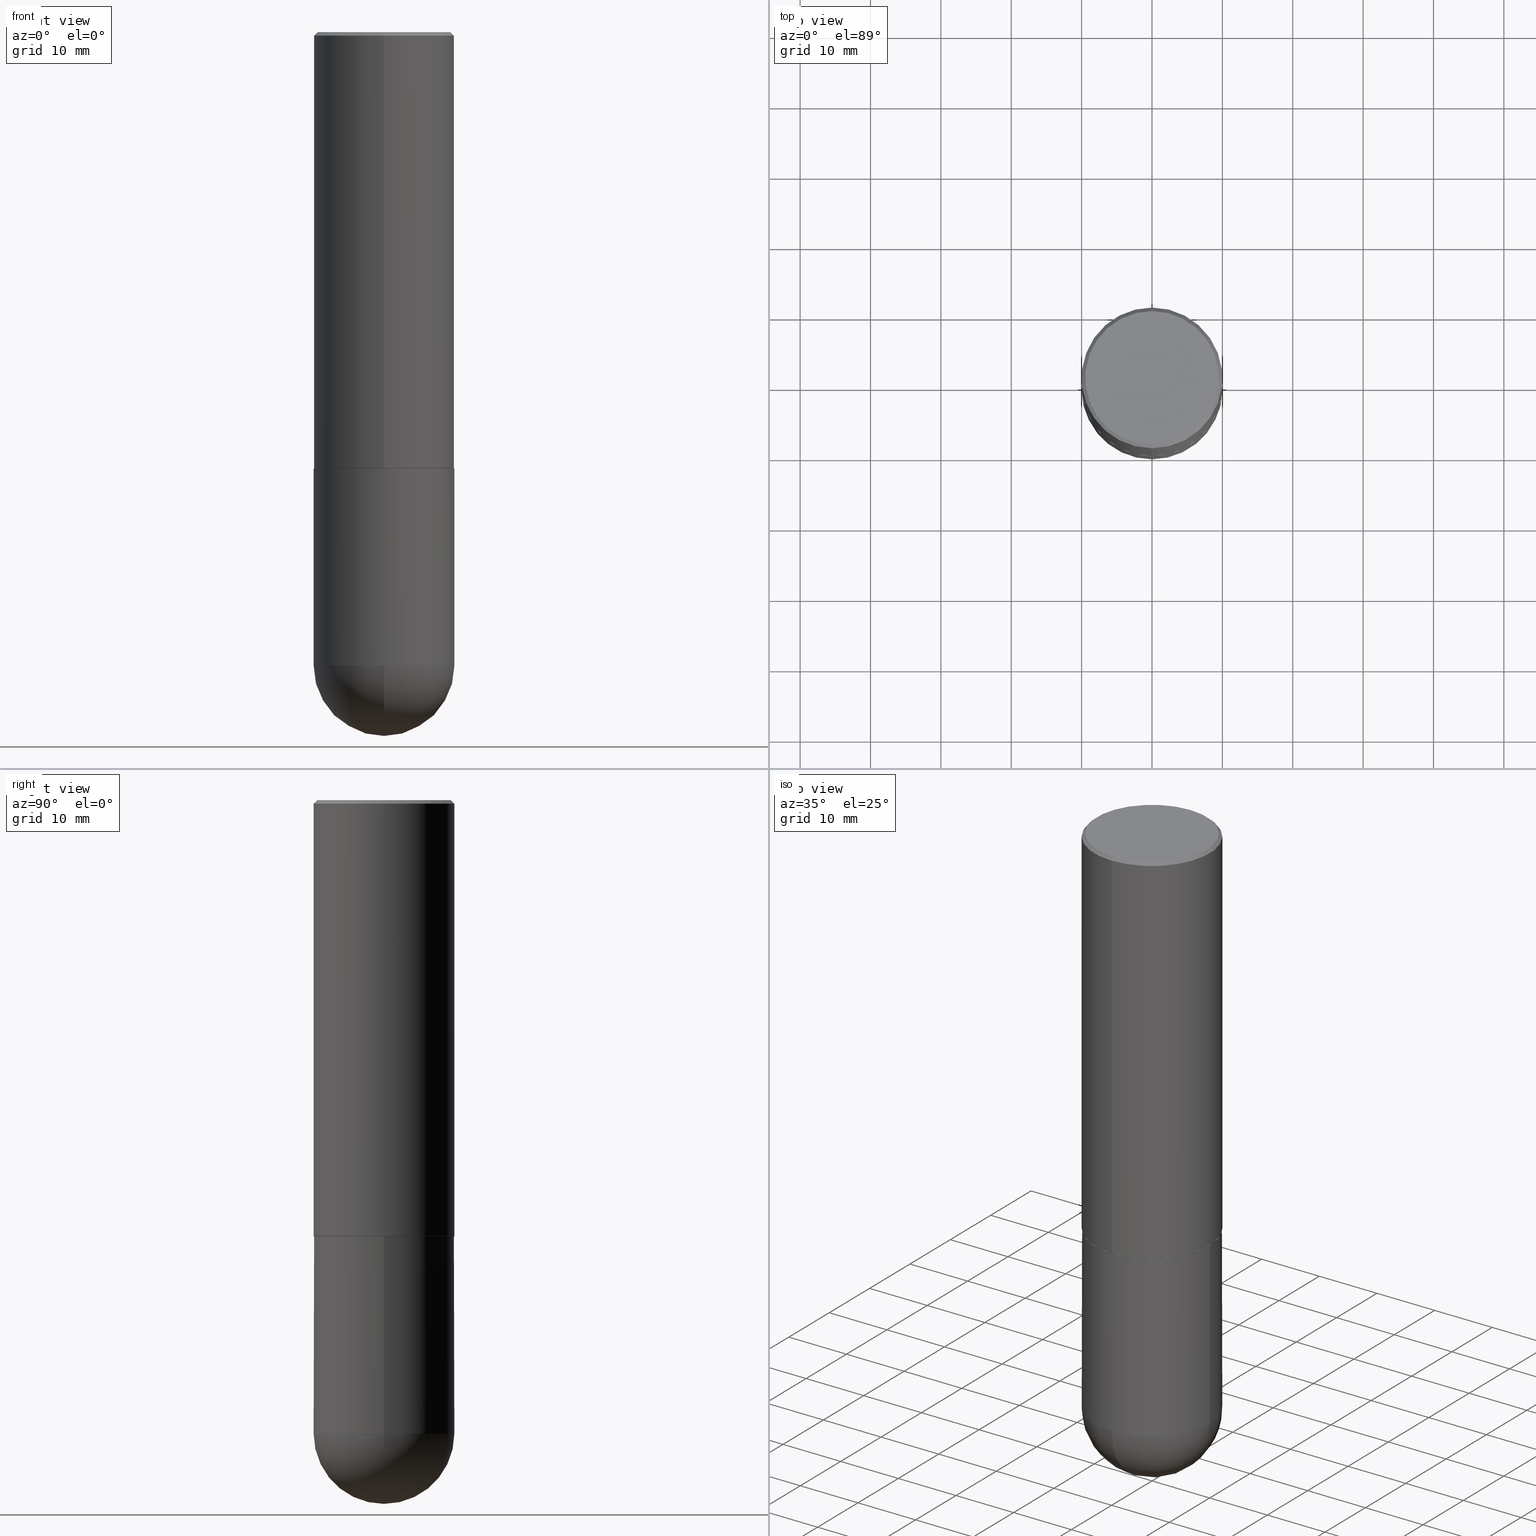
[diagram: canonical four-view strip — front | top / right | iso, engineering-drawing reading convention]
A machine part, canonical four-view strip (front | top / right | iso — engineering-drawing reading convention). The complete STEP part file that produces these views, byte-faithful:
ISO-10303-21;
HEADER;
FILE_DESCRIPTION (( 'STEP AP203' ),
    '1' );
FILE_NAME ('40582.STEP',
    '2024-04-10T11:41:38',
    ( '' ),
    ( '' ),
    'SwSTEP 2.0',
    'SolidWorks 2023',
    '' );
FILE_SCHEMA (( 'CONFIG_CONTROL_DESIGN' ));
ENDSEC;

DATA;
#1 = DATE_AND_TIME ( #381, #374 ) ;
#2 = ORIENTED_EDGE ( 'NONE', *, *, #59, .F. ) ;
#3 = FACE_OUTER_BOUND ( 'NONE', #342, .T. ) ;
#4 = CYLINDRICAL_SURFACE ( 'NONE', #353, 0.3937000000000001609 ) ;
#5 = DIRECTION ( 'NONE',  ( -6.982962677686265133E-15, -1.000000000000000000, 3.491137977679279424E-15 ) ) ;
#6 = CIRCLE ( 'NONE', #74, 0.3937000000000001054 ) ;
#7 = APPROVAL_PERSON_ORGANIZATION ( #259, #408, #25 ) ;
#8 = EDGE_LOOP ( 'NONE', ( #334, #255, #157, #2, #313 ) ) ;
#9 = CARTESIAN_POINT ( 'NONE',  ( 8.665029620955792948E-29, -1.237136582792291707E-14, -3.543299999999999450 ) ) ;
#10 = SECURITY_CLASSIFICATION_LEVEL ( 'unclassified' ) ;
#11 = FACE_OUTER_BOUND ( 'NONE', #382, .T. ) ;
#12 = EDGE_CURVE ( 'NONE', #88, #193, #101, .T. ) ;
#13 = DIRECTION ( 'NONE',  ( -1.000000000000000000, 6.982962677686265922E-15, -4.883557194083112340E-29 ) ) ;
#14 = CONICAL_SURFACE ( 'NONE', #55, 0.3926999999999999935, 0.7853981633974141952 ) ;
#15 = CARTESIAN_POINT ( 'NONE',  ( -2.700978061722651252E-15, -0.3937000000000001054, -0.01999999999999871672 ) ) ;
#16 = DIRECTION ( 'NONE',  ( -2.446177137184523035E-29, 3.490466968536327607E-15, 1.000000000000000000 ) ) ;
#17 = EDGE_CURVE ( 'NONE', #227, #27, #70, .T. ) ;
#18 = DIRECTION ( 'NONE',  ( 1.000000000000000000, -6.982962677686267499E-15, 0.000000000000000000 ) ) ;
#19 = DIRECTION ( 'NONE',  ( -2.446177137184523035E-29, 3.490466968536327213E-15, 1.000000000000000000 ) ) ;
#20 = AXIS2_PLACEMENT_3D ( 'NONE', #209, #49, #180 ) ;
#21 =( GEOMETRIC_REPRESENTATION_CONTEXT ( 3 ) GLOBAL_UNCERTAINTY_ASSIGNED_CONTEXT ( ( #393 ) ) GLOBAL_UNIT_ASSIGNED_CONTEXT ( ( #362, #211, #50 ) ) REPRESENTATION_CONTEXT ( 'NONE', 'WORKASPACE' ) );
#22 = PERSON_AND_ORGANIZATION ( #257, #46 ) ;
#23 = VECTOR ( 'NONE', #16, 39.37007874015748143 ) ;
#24 = VECTOR ( 'NONE', #80, 39.37007874015748143 ) ;
#25 = APPROVAL_ROLE ( '' ) ;
#26 = EDGE_LOOP ( 'NONE', ( #250, #120, #404, #264 ) ) ;
#27 = VERTEX_POINT ( 'NONE', #166 ) ;
#28 = ORIENTED_EDGE ( 'NONE', *, *, #272, .T. ) ;
#29 = AXIS2_PLACEMENT_3D ( 'NONE', #213, #301, #5 ) ;
#30 = EDGE_LOOP ( 'NONE', ( #378, #383, #68, #407 ) ) ;
#31 = FACE_OUTER_BOUND ( 'NONE', #129, .T. ) ;
#32 = PERSON_AND_ORGANIZATION_ROLE ( 'classification_officer' ) ;
#33 = DIRECTION ( 'NONE',  ( 4.937700262164541731E-15, 0.7071067811865442421, -0.7071067811865507924 ) ) ;
#34 = CARTESIAN_POINT ( 'NONE',  ( 2.609533152651358592E-15, 0.3737000000000001432, -1.398484316016064294E-15 ) ) ;
#35 = ORIENTED_EDGE ( 'NONE', *, *, #181, .F. ) ;
#36 = CIRCLE ( 'NONE', #329, 0.3737000000000001432 ) ;
#37 = CC_DESIGN_APPROVAL ( #51, ( #214 ) ) ;
#38 = DIRECTION ( 'NONE',  ( -6.982962677686265133E-15, -1.000000000000000000, 3.478288761986584267E-15 ) ) ;
#39 = PERSON_AND_ORGANIZATION_ROLE ( 'design_supplier' ) ;
#40 = ADVANCED_FACE ( 'NONE', ( #290 ), #4, .T. ) ;
#41 = CARTESIAN_POINT ( 'NONE',  ( -0.3937000000000001054, -7.649454563265064966E-15, -3.543299999999999450 ) ) ;
#42 = DIMENSIONAL_EXPONENTS ( 1.000000000000000000, 0.000000000000000000, 0.000000000000000000, 0.000000000000000000, 0.000000000000000000, 0.000000000000000000, 0.000000000000000000 ) ;
#43 = DIRECTION ( 'NONE',  ( -2.446177137184523035E-29, 3.490466968536327213E-15, 1.000000000000000000 ) ) ;
#44 = FACE_OUTER_BOUND ( 'NONE', #168, .T. ) ;
#45 = DIRECTION ( 'NONE',  ( -2.446177137184523035E-29, 3.490466968536327213E-15, 1.000000000000000000 ) ) ;
#46 = ORGANIZATION ( 'UNSPECIFIED', 'UNSPECIFIED', '' ) ;
#47 = EDGE_CURVE ( 'NONE', #366, #286, #308, .T. ) ;
#48 = DIRECTION ( 'NONE',  ( -1.000000000000000000, 6.982962677686265922E-15, -4.883557194083112340E-29 ) ) ;
#49 = DIRECTION ( 'NONE',  ( -2.445468806185136597E-29, 3.491481338843145583E-15, 1.000000000000000000 ) ) ;
#50 =( NAMED_UNIT ( * ) SI_UNIT ( $, .STERADIAN. ) SOLID_ANGLE_UNIT ( ) );
#51 = APPROVAL ( #336, 'UNSPECIFIED' ) ;
#52 = CARTESIAN_POINT ( 'NONE',  ( 5.970873774153703561E-29, -8.519880823500323117E-15, -2.440900000000000514 ) ) ;
#53 = AXIS2_PLACEMENT_3D ( 'NONE', #327, #45, #300 ) ;
#54 = ORIENTED_EDGE ( 'NONE', *, *, #196, .F. ) ;
#55 = AXIS2_PLACEMENT_3D ( 'NONE', #52, #269, #388 ) ;
#56 = ADVANCED_FACE ( 'NONE', ( #11 ), #267, .F. ) ;
#57 = SPHERICAL_SURFACE ( 'NONE', #69, 0.3937000000000003830 ) ;
#58 = CIRCLE ( 'NONE', #53, 0.3937000000000002720 ) ;
#59 = EDGE_CURVE ( 'NONE', #62, #286, #146, .T. ) ;
#60 = CC_DESIGN_APPROVAL ( #408, ( #244 ) ) ;
#61 = CARTESIAN_POINT ( 'NONE',  ( 4.603549299917414550E-45, -6.568836134199453814E-31, -1.881936197480760582E-16 ) ) ;
#62 = VERTEX_POINT ( 'NONE', #199 ) ;
#63 = DATE_AND_TIME ( #405, #285 ) ;
#64 = EDGE_CURVE ( 'NONE', #85, #160, #119, .T. ) ;
#65 = DIRECTION ( 'NONE',  ( -2.445468806185136877E-29, 3.491481338843145188E-15, 1.000000000000000000 ) ) ;
#66 = VERTEX_POINT ( 'NONE', #141 ) ;
#67 = DIRECTION ( 'NONE',  ( -2.446177137184523035E-29, 3.490466968536327213E-15, 1.000000000000000000 ) ) ;
#68 = ORIENTED_EDGE ( 'NONE', *, *, #343, .F. ) ;
#69 = AXIS2_PLACEMENT_3D ( 'NONE', #110, #48, #398 ) ;
#70 = LINE ( 'NONE', #317, #279 ) ;
#71 = DIRECTION ( 'NONE',  ( 0.000000000000000000, 0.000000000000000000, 1.000000000000000000 ) ) ;
#72 = ORIENTED_EDGE ( 'NONE', *, *, #204, .T. ) ;
#73 = CARTESIAN_POINT ( 'NONE',  ( 2.749192406205142776E-15, 0.3936999999999915012, -2.440900000000001402 ) ) ;
#74 = AXIS2_PLACEMENT_3D ( 'NONE', #331, #324, #207 ) ;
#75 = CARTESIAN_POINT ( 'NONE',  ( 2.790301323329972943E-15, 0.3926999999999915003, -2.440900000000001846 ) ) ;
#76 = CARTESIAN_POINT ( 'NONE',  ( 2.749192406205169202E-15, 0.3936999999999876709, -3.543300000000000782 ) ) ;
#77 = DIRECTION ( 'NONE',  ( 1.000000000000000000, -6.982962677686266711E-15, 0.000000000000000000 ) ) ;
#78 = DIRECTION ( 'NONE',  ( -6.982962677686265922E-15, -1.000000000000000000, 3.469453890861393601E-15 ) ) ;
#79 = EDGE_CURVE ( 'NONE', #85, #27, #171, .T. ) ;
#80 = DIRECTION ( 'NONE',  ( -4.851104656540957964E-15, -0.7071067811865491270, -0.7071067811865459074 ) ) ;
#81 = DIRECTION ( 'NONE',  ( -2.445468806185136877E-29, 3.491481338843145188E-15, 1.000000000000000000 ) ) ;
#82 = APPROVAL_PERSON_ORGANIZATION ( #22, #219, #252 ) ;
#83 = DIRECTION ( 'NONE',  ( -2.446177137184523035E-29, 3.490466968536327213E-15, 1.000000000000000000 ) ) ;
#84 = FACE_OUTER_BOUND ( 'NONE', #222, .T. ) ;
#85 = VERTEX_POINT ( 'NONE', #386 ) ;
#86 = APPLICATION_PROTOCOL_DEFINITION ( 'international standard', 'config_control_design', 1994, #184 ) ;
#87 = EDGE_CURVE ( 'NONE', #66, #88, #262, .T. ) ;
#88 = VERTEX_POINT ( 'NONE', #76 ) ;
#89 = CIRCLE ( 'NONE', #322, 0.3937000000000003830 ) ;
#90 = APPROVAL_DATE_TIME ( #91, #219 ) ;
#91 = DATE_AND_TIME ( #220, #361 ) ;
#92 = DIRECTION ( 'NONE',  ( 2.446177137184523035E-29, -3.490466968536327213E-15, -1.000000000000000000 ) ) ;
#93 = CARTESIAN_POINT ( 'NONE',  ( 4.892354274369068595E-31, -6.980933937072685388E-17, -0.02000000000000009062 ) ) ;
#94 = SHAPE_DEFINITION_REPRESENTATION ( #218, #178 ) ;
#95 = AXIS2_PLACEMENT_3D ( 'NONE', #351, #296, #18 ) ;
#96 = DIRECTION ( 'NONE',  ( 1.000000000000000000, 0.000000000000000000, 0.000000000000000000 ) ) ;
#97 = ORIENTED_EDGE ( 'NONE', *, *, #253, .F. ) ;
#98 = VERTEX_POINT ( 'NONE', #205 ) ;
#99 = CC_DESIGN_DATE_AND_TIME_ASSIGNMENT ( #276, #400, ( #214 ) ) ;
#100 = ORIENTED_EDGE ( 'NONE', *, *, #319, .F. ) ;
#101 = CIRCLE ( 'NONE', #402, 0.3937000000000001054 ) ;
#102 = CARTESIAN_POINT ( 'NONE',  ( 8.665029620955792948E-29, -1.237136582792291707E-14, -3.543299999999999450 ) ) ;
#103 = CALENDAR_DATE ( 2024, 10, 4 ) ;
#104 = ORIENTED_EDGE ( 'NONE', *, *, #87, .F. ) ;
#105 = FACE_OUTER_BOUND ( 'NONE', #340, .T. ) ;
#106 = DIRECTION ( 'NONE',  ( 2.438088387897960049E-29, -3.491481338843145188E-15, -1.000000000000000000 ) ) ;
#107 = CARTESIAN_POINT ( 'NONE',  ( 2.797406750687515181E-15, 0.3937000000000001609, -1.374196845512752588E-15 ) ) ;
#108 = DIRECTION ( 'NONE',  ( -1.000000000000000000, 7.105427357601001070E-15, -4.926315508542082329E-29 ) ) ;
#109 = DIRECTION ( 'NONE',  ( 1.000000000000000000, -6.982962677686266711E-15, 0.000000000000000000 ) ) ;
#110 = CARTESIAN_POINT ( 'NONE',  ( 8.333909843041907822E-29, -1.284554819606296579E-14, -3.543299999999999894 ) ) ;
#111 = CARTESIAN_POINT ( 'NONE',  ( 4.603549299917414550E-45, -6.568836134199453814E-31, -1.881936197480760582E-16 ) ) ;
#112 = DIRECTION ( 'NONE',  ( 1.000000000000000000, -6.982962677686266711E-15, 4.876176775795935793E-29 ) ) ;
#113 = VECTOR ( 'NONE', #163, 39.37007874015748854 ) ;
#114 = CYLINDRICAL_SURFACE ( 'NONE', #169, 0.3937000000000001054 ) ;
#115 = AXIS2_PLACEMENT_3D ( 'NONE', #359, #83, #179 ) ;
#116 = FACE_OUTER_BOUND ( 'NONE', #278, .T. ) ;
#117 = EDGE_CURVE ( 'NONE', #198, #227, #136, .T. ) ;
#118 = APPROVAL_STATUS ( 'not_yet_approved' ) ;
#119 = CIRCLE ( 'NONE', #346, 0.3937000000000002720 ) ;
#120 = ORIENTED_EDGE ( 'NONE', *, *, #333, .T. ) ;
#121 = AXIS2_PLACEMENT_3D ( 'NONE', #145, #271, #197 ) ;
#122 = APPROVAL_DATE_TIME ( #63, #51 ) ;
#123 = CARTESIAN_POINT ( 'NONE',  ( 0.000000000000000000, 0.000000000000000000, 0.000000000000000000 ) ) ;
#124 = ADVANCED_FACE ( 'NONE', ( #237 ), #325, .T. ) ;
#125 = ORIENTED_EDGE ( 'NONE', *, *, #236, .F. ) ;
#126 = COORDINATED_UNIVERSAL_TIME_OFFSET ( 5, 0, .BEHIND. ) ;
#127 = MANIFOLD_SOLID_BREP ( 'Body-Move/Copy2[2]', #201 ) ;
#128 = LINE ( 'NONE', #224, #397 ) ;
#129 = EDGE_LOOP ( 'NONE', ( #195, #232, #280, #131 ) ) ;
#130 = DIRECTION ( 'NONE',  ( -2.445468806185136597E-29, 3.491481338843145583E-15, 1.000000000000000000 ) ) ;
#131 = ORIENTED_EDGE ( 'NONE', *, *, #17, .F. ) ;
#132 = EDGE_CURVE ( 'NONE', #160, #349, #270, .T. ) ;
#133 = DIRECTION ( 'NONE',  ( 1.000000000000000000, -6.982962677686266711E-15, 4.876176775795935793E-29 ) ) ;
#134 = ORIENTED_EDGE ( 'NONE', *, *, #319, .T. ) ;
#135 = EDGE_LOOP ( 'NONE', ( #100, #247, #369, #309 ) ) ;
#136 = CIRCLE ( 'NONE', #176, 0.3737000000000001432 ) ;
#137 = AXIS2_PLACEMENT_3D ( 'NONE', #34, #364, #175 ) ;
#138 = EDGE_CURVE ( 'NONE', #152, #62, #186, .T. ) ;
#139 = ORIENTED_EDGE ( 'NONE', *, *, #333, .F. ) ;
#140 = DIRECTION ( 'NONE',  ( -1.000000000000000000, 6.982962677686265922E-15, -4.876176775795935793E-29 ) ) ;
#141 = CARTESIAN_POINT ( 'NONE',  ( 9.313524860439493426E-29, -1.419603722692429674E-14, -3.937000000000000277 ) ) ;
#142 = FACE_OUTER_BOUND ( 'NONE', #26, .T. ) ;
#143 = AXIS2_PLACEMENT_3D ( 'NONE', #9, #293, #109 ) ;
#144 = CARTESIAN_POINT ( 'NONE',  ( 8.333909843041907822E-29, -1.284554819606296579E-14, -3.543299999999999894 ) ) ;
#145 = CARTESIAN_POINT ( 'NONE',  ( 5.970873774153703561E-29, -8.519880823500323117E-15, -2.440900000000000514 ) ) ;
#146 = LINE ( 'NONE', #265, #328 ) ;
#147 = CARTESIAN_POINT ( 'NONE',  ( -2.700978061722651252E-15, -0.3937000000000001054, -0.01999999999999871672 ) ) ;
#148 = DIRECTION ( 'NONE',  ( 1.000000000000000000, -6.982962677686265922E-15, 4.883557194083112340E-29 ) ) ;
#149 = AXIS2_PLACEMENT_3D ( 'NONE', #158, #192, #284 ) ;
#150 = COORDINATED_UNIVERSAL_TIME_OFFSET ( 5, 0, .BEHIND. ) ;
#151 = ORIENTED_EDGE ( 'NONE', *, *, #47, .T. ) ;
#152 = VERTEX_POINT ( 'NONE', #390 ) ;
#153 = EDGE_CURVE ( 'NONE', #306, #85, #239, .T. ) ;
#154 = CLOSED_SHELL ( 'NONE', ( #307, #305, #124, #56, #228 ) ) ;
#155 = CONICAL_SURFACE ( 'NONE', #194, 0.3937000000000000499, 0.7853981633974471688 ) ;
#156 = FACE_OUTER_BOUND ( 'NONE', #189, .T. ) ;
#157 = ORIENTED_EDGE ( 'NONE', *, *, #204, .F. ) ;
#158 = CARTESIAN_POINT ( 'NONE',  ( 0.000000000000000000, 0.000000000000000000, 0.000000000000000000 ) ) ;
#159 = EDGE_CURVE ( 'NONE', #62, #88, #6, .T. ) ;
#160 = VERTEX_POINT ( 'NONE', #274 ) ;
#161 = AXIS2_PLACEMENT_3D ( 'NONE', #73, #106, #140 ) ;
#162 = APPLICATION_CONTEXT ( 'configuration controlled 3d designs of mechanical parts and assemblies' ) ;
#163 = DIRECTION ( 'NONE',  ( -4.937700262164378437E-15, -0.7071067811865208164, 0.7071067811865739960 ) ) ;
#164 = COORDINATED_UNIVERSAL_TIME_OFFSET ( 5, 0, .BEHIND. ) ;
#165 = ORIENTED_EDGE ( 'NONE', *, *, #379, .T. ) ;
#166 = CARTESIAN_POINT ( 'NONE',  ( 2.749192406205083217E-15, 0.3936999999999999389, -0.02000000000000146452 ) ) ;
#167 = CARTESIAN_POINT ( 'NONE',  ( 8.333909843041907822E-29, -1.284554819606296579E-14, -3.543299999999999894 ) ) ;
#168 = EDGE_LOOP ( 'NONE', ( #28, #288 ) ) ;
#169 = AXIS2_PLACEMENT_3D ( 'NONE', #123, #130, #133 ) ;
#170 = CIRCLE ( 'NONE', #115, 0.3937000000000000499 ) ;
#171 = LINE ( 'NONE', #107, #23 ) ;
#172 = PERSON_AND_ORGANIZATION ( #257, #46 ) ;
#173 = CARTESIAN_POINT ( 'NONE',  ( 5.968427597016518954E-29, -8.516390356531785120E-15, -2.439900000000000180 ) ) ;
#174 = CARTESIAN_POINT ( 'NONE',  ( 0.000000000000000000, 0.000000000000000000, 0.000000000000000000 ) ) ;
#175 = DIRECTION ( 'NONE',  ( 6.982962677686265922E-15, 1.000000000000000000, -3.490466968536327607E-15 ) ) ;
#176 = AXIS2_PLACEMENT_3D ( 'NONE', #111, #384, #354 ) ;
#177 = CARTESIAN_POINT ( 'NONE',  ( 8.333909843041907822E-29, -1.284554819606296579E-14, -3.543299999999999894 ) ) ;
#178 = ADVANCED_BREP_SHAPE_REPRESENTATION ( '40582', ( #410, #127, #355 ), #21 ) ;
#179 = DIRECTION ( 'NONE',  ( -6.982962677686265133E-15, -1.000000000000000000, 3.491137977679279424E-15 ) ) ;
#180 = DIRECTION ( 'NONE',  ( 1.000000000000000000, -6.982962677686267499E-15, 0.000000000000000000 ) ) ;
#181 = EDGE_CURVE ( 'NONE', #98, #306, #321, .T. ) ;
#182 = ORIENTED_EDGE ( 'NONE', *, *, #272, .F. ) ;
#183 = AXIS2_PLACEMENT_3D ( 'NONE', #144, #148, #203 ) ;
#184 = APPLICATION_CONTEXT ( 'configuration controlled 3d designs of mechanical parts and assemblies' ) ;
#185 = ORIENTED_EDGE ( 'NONE', *, *, #379, .F. ) ;
#186 = CIRCLE ( 'NONE', #143, 0.3937000000000001054 ) ;
#187 = CC_DESIGN_APPROVAL ( #219, ( #387 ) ) ;
#188 = DIRECTION ( 'NONE',  ( 2.446177137184523035E-29, -3.490466968536327213E-15, -1.000000000000000000 ) ) ;
#189 = EDGE_LOOP ( 'NONE', ( #104, #134, #377, #282 ) ) ;
#190 = CALENDAR_DATE ( 2024, 10, 4 ) ;
#191 = EDGE_LOOP ( 'NONE', ( #375, #412, #216, #185 ) ) ;
#192 = DIRECTION ( 'NONE',  ( -2.446177137184523035E-29, 3.490466968536327213E-15, 1.000000000000000000 ) ) ;
#193 = VERTEX_POINT ( 'NONE', #41 ) ;
#194 = AXIS2_PLACEMENT_3D ( 'NONE', #371, #92, #339 ) ;
#195 = ORIENTED_EDGE ( 'NONE', *, *, #117, .F. ) ;
#196 = EDGE_CURVE ( 'NONE', #160, #85, #58, .T. ) ;
#197 = DIRECTION ( 'NONE',  ( -6.982962677686265133E-15, -1.000000000000000000, 3.478288761986584267E-15 ) ) ;
#198 = VERTEX_POINT ( 'NONE', #360 ) ;
#199 = CARTESIAN_POINT ( 'NONE',  ( 0.3937000000000001054, -1.319605372015766376E-14, -3.543299999999999450 ) ) ;
#200 = PERSON_AND_ORGANIZATION ( #257, #46 ) ;
#201 = CLOSED_SHELL ( 'NONE', ( #350, #266, #275, #297, #40, #406, #210, #337 ) ) ;
#202 = LOCAL_TIME ( 7, 41, 38.00000000000000000, #126 ) ;
#203 = DIRECTION ( 'NONE',  ( 6.982962677686265133E-15, 1.000000000000000000, 0.000000000000000000 ) ) ;
#204 = EDGE_CURVE ( 'NONE', #286, #366, #385, .T. ) ;
#205 = CARTESIAN_POINT ( 'NONE',  ( -2.742209443527336854E-15, -0.3927000000000085422, -2.440899999999999181 ) ) ;
#206 = FACE_OUTER_BOUND ( 'NONE', #8, .T. ) ;
#207 = DIRECTION ( 'NONE',  ( 1.000000000000000000, -6.982962677686266711E-15, 0.000000000000000000 ) ) ;
#208 =( LENGTH_UNIT ( ) NAMED_UNIT ( * ) SI_UNIT ( $, .METRE. ) );
#209 = CARTESIAN_POINT ( 'NONE',  ( 5.969144809017300159E-29, -8.522356799982234543E-15, -2.440900000000000070 ) ) ;
#210 = ADVANCED_FACE ( 'NONE', ( #105 ), #233, .F. ) ;
#211 =( NAMED_UNIT ( * ) PLANE_ANGLE_UNIT ( ) SI_UNIT ( $, .RADIAN. ) );
#212 = CARTESIAN_POINT ( 'NONE',  ( 2.679362779428221102E-15, 0.3737000000000001432, -1.492581125890102212E-15 ) ) ;
#213 = CARTESIAN_POINT ( 'NONE',  ( 4.892354274369068595E-31, -6.980933937072685388E-17, -0.02000000000000009062 ) ) ;
#214 = PRODUCT_DEFINITION ( 'UNKNOWN', '', #387, #242 ) ;
#215 = PRODUCT ( '40582', '40582', '', ( #248 ) ) ;
#216 = ORIENTED_EDGE ( 'NONE', *, *, #132, .T. ) ;
#217 = CIRCLE ( 'NONE', #347, 0.3926999999999999935 ) ;
#218 = PRODUCT_DEFINITION_SHAPE ( 'NONE', 'NONE',  #214 ) ;
#219 = APPROVAL ( #118, 'UNSPECIFIED' ) ;
#220 = CALENDAR_DATE ( 2024, 10, 4 ) ;
#221 = DIRECTION ( 'NONE',  ( -6.982962677686265922E-15, -1.000000000000000000, 3.490466968536327607E-15 ) ) ;
#222 = EDGE_LOOP ( 'NONE', ( #97, #311, #260, #226, #292 ) ) ;
#223 = CIRCLE ( 'NONE', #235, 0.3937000000000001054 ) ;
#224 = CARTESIAN_POINT ( 'NONE',  ( -0.3937000000000001054, 2.797406750687515181E-15, -1.936584745033357016E-29 ) ) ;
#225 = COORDINATED_UNIVERSAL_TIME_OFFSET ( 5, 0, .BEHIND. ) ;
#226 = ORIENTED_EDGE ( 'NONE', *, *, #59, .T. ) ;
#227 = VERTEX_POINT ( 'NONE', #212 ) ;
#228 = ADVANCED_FACE ( 'NONE', ( #84 ), #114, .T. ) ;
#229 = ORIENTED_EDGE ( 'NONE', *, *, #17, .T. ) ;
#230 = VECTOR ( 'NONE', #273, 39.37007874015748143 ) ;
#231 = AXIS2_PLACEMENT_3D ( 'NONE', #330, #240, #112 ) ;
#232 = ORIENTED_EDGE ( 'NONE', *, *, #396, .T. ) ;
#233 = PLANE ( 'NONE',  #367 ) ;
#234 = CARTESIAN_POINT ( 'NONE',  ( -2.749192406205084005E-15, -0.3937000000000001609, 1.374196845512752588E-15 ) ) ;
#235 = AXIS2_PLACEMENT_3D ( 'NONE', #102, #291, #77 ) ;
#236 = EDGE_CURVE ( 'NONE', #98, #160, #344, .T. ) ;
#237 = FACE_OUTER_BOUND ( 'NONE', #135, .T. ) ;
#238 = DIRECTION ( 'NONE',  ( -7.105427357600999492E-15, -1.000000000000000000, 0.000000000000000000 ) ) ;
#239 = LINE ( 'NONE', #75, #254 ) ;
#240 = DIRECTION ( 'NONE',  ( -2.445468806185136597E-29, 3.491481338843145583E-15, 1.000000000000000000 ) ) ;
#241 = DIRECTION ( 'NONE',  ( -2.446177137184523035E-29, 3.490466968536327213E-15, 1.000000000000000000 ) ) ;
#242 = DESIGN_CONTEXT ( 'detailed design', #184, 'design' ) ;
#243 = CARTESIAN_POINT ( 'NONE',  ( 5.970873774153703561E-29, -8.519880823500323117E-15, -2.440900000000000514 ) ) ;
#244 = SECURITY_CLASSIFICATION ( '', '', #10 ) ;
#245 = DIRECTION ( 'NONE',  ( -2.446177137184522474E-29, 3.490466968536327607E-15, 1.000000000000000000 ) ) ;
#246 = APPLICATION_PROTOCOL_DEFINITION ( 'international standard', 'config_control_design', 1994, #162 ) ;
#247 = ORIENTED_EDGE ( 'NONE', *, *, #87, .T. ) ;
#248 = MECHANICAL_CONTEXT ( 'NONE', #162, 'mechanical' ) ;
#249 = AXIS2_PLACEMENT_3D ( 'NONE', #392, #241, #38 ) ;
#250 = ORIENTED_EDGE ( 'NONE', *, *, #153, .F. ) ;
#251 = COORDINATED_UNIVERSAL_TIME_OFFSET ( 5, 0, .BEHIND. ) ;
#252 = APPROVAL_ROLE ( '' ) ;
#253 = EDGE_CURVE ( 'NONE', #193, #366, #128, .T. ) ;
#254 = VECTOR ( 'NONE', #357, 39.37007874015748854 ) ;
#255 = ORIENTED_EDGE ( 'NONE', *, *, #253, .T. ) ;
#256 = CC_DESIGN_SECURITY_CLASSIFICATION ( #244, ( #387 ) ) ;
#257 = PERSON ( 'UNSPECIFIED', 'UNSPECIFIED', 'UNSPECIFIED', ('UNSPECIFIED'), ('UNSPECIFIED'), ('UNSPECIFIED') ) ;
#258 = DIRECTION ( 'NONE',  ( -2.445468806185136597E-29, 3.491481338843145583E-15, 1.000000000000000000 ) ) ;
#259 = PERSON_AND_ORGANIZATION ( #257, #46 ) ;
#260 = ORIENTED_EDGE ( 'NONE', *, *, #138, .T. ) ;
#261 = CARTESIAN_POINT ( 'NONE',  ( 8.665029620955792948E-29, -1.237136582792291707E-14, -3.543299999999999450 ) ) ;
#262 = CIRCLE ( 'NONE', #183, 0.3937000000000003830 ) ;
#263 = APPROVAL_PERSON_ORGANIZATION ( #335, #51, #281 ) ;
#264 = ORIENTED_EDGE ( 'NONE', *, *, #64, .F. ) ;
#265 = CARTESIAN_POINT ( 'NONE',  ( 0.3937000000000001054, -2.749192406205084005E-15, 1.919750796630860452E-29 ) ) ;
#266 = ADVANCED_FACE ( 'NONE', ( #310 ), #315, .T. ) ;
#267 = PLANE ( 'NONE',  #161 ) ;
#268 = CIRCLE ( 'NONE', #29, 0.3937000000000000499 ) ;
#269 = DIRECTION ( 'NONE',  ( -2.446177137184523035E-29, 3.490466968536327213E-15, 1.000000000000000000 ) ) ;
#270 = LINE ( 'NONE', #234, #230 ) ;
#271 = DIRECTION ( 'NONE',  ( -2.446177137184523035E-29, 3.490466968536327213E-15, 1.000000000000000000 ) ) ;
#272 = EDGE_CURVE ( 'NONE', #227, #198, #36, .T. ) ;
#273 = DIRECTION ( 'NONE',  ( -2.446177137184523035E-29, 3.490466968536327607E-15, 1.000000000000000000 ) ) ;
#274 = CARTESIAN_POINT ( 'NONE',  ( -2.749192406205025235E-15, -0.3937000000000088207, -2.439899999999998847 ) ) ;
#275 = ADVANCED_FACE ( 'NONE', ( #31 ), #380, .T. ) ;
#276 = DATE_AND_TIME ( #190, #202 ) ;
#277 = CC_DESIGN_PERSON_AND_ORGANIZATION_ASSIGNMENT ( #200, #32, ( #244 ) ) ;
#278 = EDGE_LOOP ( 'NONE', ( #318, #401, #54, #125 ) ) ;
#279 = VECTOR ( 'NONE', #33, 39.37007874015748143 ) ;
#280 = ORIENTED_EDGE ( 'NONE', *, *, #343, .T. ) ;
#281 = APPROVAL_ROLE ( '' ) ;
#282 = ORIENTED_EDGE ( 'NONE', *, *, #12, .F. ) ;
#283 = CC_DESIGN_PERSON_AND_ORGANIZATION_ASSIGNMENT ( #338, #370, ( #214 ) ) ;
#284 = DIRECTION ( 'NONE',  ( -6.982962677686265922E-15, -1.000000000000000000, 3.490466968536327213E-15 ) ) ;
#285 = LOCAL_TIME ( 7, 41, 38.00000000000000000, #251 ) ;
#286 = VERTEX_POINT ( 'NONE', #289 ) ;
#287 = DATE_TIME_ROLE ( 'classification_date' ) ;
#288 = ORIENTED_EDGE ( 'NONE', *, *, #117, .T. ) ;
#289 = CARTESIAN_POINT ( 'NONE',  ( 0.3937000000000000499, -1.127154920618731776E-14, -2.440900000000000070 ) ) ;
#290 = FACE_OUTER_BOUND ( 'NONE', #191, .T. ) ;
#291 = DIRECTION ( 'NONE',  ( -2.445468806185136597E-29, 3.491481338843145583E-15, 1.000000000000000000 ) ) ;
#292 = ORIENTED_EDGE ( 'NONE', *, *, #47, .F. ) ;
#293 = DIRECTION ( 'NONE',  ( -2.445468806185136597E-29, 3.491481338843145583E-15, 1.000000000000000000 ) ) ;
#294 = PERSON_AND_ORGANIZATION ( #257, #46 ) ;
#295 = DIRECTION ( 'NONE',  ( -6.982962677686265922E-15, -1.000000000000000000, 3.490466968536327213E-15 ) ) ;
#296 = DIRECTION ( 'NONE',  ( -2.445468806185136597E-29, 3.491481338843145583E-15, 1.000000000000000000 ) ) ;
#297 = ADVANCED_FACE ( 'NONE', ( #3 ), #155, .T. ) ;
#298 = CONICAL_SURFACE ( 'NONE', #121, 0.3926999999999999935, 0.7853981633974141952 ) ;
#299 = LINE ( 'NONE', #15, #24 ) ;
#300 = DIRECTION ( 'NONE',  ( -6.982962677686265922E-15, -1.000000000000000000, 3.469453890861393601E-15 ) ) ;
#301 = DIRECTION ( 'NONE',  ( -2.446177137184523035E-29, 3.490466968536327213E-15, 1.000000000000000000 ) ) ;
#302 = DIRECTION ( 'NONE',  ( -2.446177137184523035E-29, 3.490466968536327213E-15, 1.000000000000000000 ) ) ;
#303 = CARTESIAN_POINT ( 'NONE',  ( 0.000000000000000000, 0.000000000000000000, 0.000000000000000000 ) ) ;
#304 = LOCAL_TIME ( 7, 41, 38.00000000000000000, #225 ) ;
#305 = ADVANCED_FACE ( 'NONE', ( #156 ), #57, .T. ) ;
#306 = VERTEX_POINT ( 'NONE', #411 ) ;
#307 = ADVANCED_FACE ( 'NONE', ( #206 ), #326, .T. ) ;
#308 = CIRCLE ( 'NONE', #95, 0.3937000000000000499 ) ;
#309 = ORIENTED_EDGE ( 'NONE', *, *, #138, .F. ) ;
#310 = FACE_OUTER_BOUND ( 'NONE', #30, .T. ) ;
#311 = ORIENTED_EDGE ( 'NONE', *, *, #376, .T. ) ;
#312 = DIRECTION ( 'NONE',  ( 6.982962677686265133E-15, 1.000000000000000000, -3.491137977679279424E-15 ) ) ;
#313 = ORIENTED_EDGE ( 'NONE', *, *, #159, .T. ) ;
#314 = PRODUCT_RELATED_PRODUCT_CATEGORY ( 'detail', '', ( #215 ) ) ;
#315 = CYLINDRICAL_SURFACE ( 'NONE', #149, 0.3937000000000001609 ) ;
#316 = APPROVAL_STATUS ( 'not_yet_approved' ) ;
#317 = CARTESIAN_POINT ( 'NONE',  ( 2.749192406205083217E-15, 0.3936999999999999389, -0.02000000000000146452 ) ) ;
#318 = ORIENTED_EDGE ( 'NONE', *, *, #181, .T. ) ;
#319 = EDGE_CURVE ( 'NONE', #66, #152, #89, .T. ) ;
#320 = DIRECTION ( 'NONE',  ( 6.982962677686265922E-15, 1.000000000000000000, -4.163344669033671690E-15 ) ) ;
#321 = CIRCLE ( 'NONE', #249, 0.3926999999999999935 ) ;
#322 = AXIS2_PLACEMENT_3D ( 'NONE', #167, #108, #238 ) ;
#323 = PERSON_AND_ORGANIZATION_ROLE ( 'creator' ) ;
#324 = DIRECTION ( 'NONE',  ( -2.445468806185136597E-29, 3.491481338843145583E-15, 1.000000000000000000 ) ) ;
#325 = SPHERICAL_SURFACE ( 'NONE', #409, 0.3937000000000003830 ) ;
#326 = CYLINDRICAL_SURFACE ( 'NONE', #231, 0.3937000000000001054 ) ;
#327 = CARTESIAN_POINT ( 'NONE',  ( 5.968427597016518954E-29, -8.516390356531785120E-15, -2.439900000000000180 ) ) ;
#328 = VECTOR ( 'NONE', #81, 39.37007874015748143 ) ;
#329 = AXIS2_PLACEMENT_3D ( 'NONE', #61, #67, #221 ) ;
#330 = CARTESIAN_POINT ( 'NONE',  ( 0.000000000000000000, 0.000000000000000000, 0.000000000000000000 ) ) ;
#331 = CARTESIAN_POINT ( 'NONE',  ( 8.665029620955792948E-29, -1.237136582792291707E-14, -3.543299999999999450 ) ) ;
#332 = CARTESIAN_POINT ( 'NONE',  ( -0.3937000000000000499, -7.649454563265061811E-15, -2.440900000000000070 ) ) ;
#333 = EDGE_CURVE ( 'NONE', #306, #98, #217, .T. ) ;
#334 = ORIENTED_EDGE ( 'NONE', *, *, #12, .T. ) ;
#335 = PERSON_AND_ORGANIZATION ( #257, #46 ) ;
#336 = APPROVAL_STATUS ( 'not_yet_approved' ) ;
#337 = ADVANCED_FACE ( 'NONE', ( #44 ), #391, .F. ) ;
#338 = PERSON_AND_ORGANIZATION ( #257, #46 ) ;
#339 = DIRECTION ( 'NONE',  ( 6.982962677686265133E-15, 1.000000000000000000, -3.491137977679279424E-15 ) ) ;
#340 = EDGE_LOOP ( 'NONE', ( #35, #139 ) ) ;
#341 = DATE_AND_TIME ( #103, #304 ) ;
#342 = EDGE_LOOP ( 'NONE', ( #348, #182, #229, #165 ) ) ;
#343 = EDGE_CURVE ( 'NONE', #349, #27, #170, .T. ) ;
#344 = LINE ( 'NONE', #372, #113 ) ;
#345 = DIRECTION ( 'NONE',  ( 1.000000000000000000, -6.982962677686266711E-15, 0.000000000000000000 ) ) ;
#346 = AXIS2_PLACEMENT_3D ( 'NONE', #173, #43, #78 ) ;
#347 = AXIS2_PLACEMENT_3D ( 'NONE', #243, #19, #356 ) ;
#348 = ORIENTED_EDGE ( 'NONE', *, *, #396, .F. ) ;
#349 = VERTEX_POINT ( 'NONE', #147 ) ;
#350 = ADVANCED_FACE ( 'NONE', ( #116 ), #298, .T. ) ;
#351 = CARTESIAN_POINT ( 'NONE',  ( 5.969144809017300159E-29, -8.522356799982234543E-15, -2.440900000000000070 ) ) ;
#352 = CC_DESIGN_PERSON_AND_ORGANIZATION_ASSIGNMENT ( #172, #323, ( #387 ) ) ;
#353 = AXIS2_PLACEMENT_3D ( 'NONE', #174, #302, #295 ) ;
#354 = DIRECTION ( 'NONE',  ( -6.982962677686265922E-15, -1.000000000000000000, 3.490466968536327607E-15 ) ) ;
#355 = AXIS2_PLACEMENT_3D ( 'NONE', #303, #71, #96 ) ;
#356 = DIRECTION ( 'NONE',  ( -6.982962677686265133E-15, -1.000000000000000000, 3.478288761986584267E-15 ) ) ;
#357 = DIRECTION ( 'NONE',  ( 5.024295867787889629E-15, 0.7071067811865257013, 0.7071067811865691111 ) ) ;
#358 = CC_DESIGN_DATE_AND_TIME_ASSIGNMENT ( #1, #287, ( #244 ) ) ;
#359 = CARTESIAN_POINT ( 'NONE',  ( 4.892354274369068595E-31, -6.980933937072685388E-17, -0.02000000000000009062 ) ) ;
#360 = CARTESIAN_POINT ( 'NONE',  ( -2.632373081744936710E-15, -0.3737000000000001432, 1.116193886393949948E-15 ) ) ;
#361 = LOCAL_TIME ( 7, 41, 38.00000000000000000, #150 ) ;
#362 =( CONVERSION_BASED_UNIT ( 'INCH', #394 ) LENGTH_UNIT ( ) NAMED_UNIT ( #42 ) );
#363 = DIRECTION ( 'NONE',  ( -6.982962677686265922E-15, -1.000000000000000000, 3.490466968536327607E-15 ) ) ;
#364 = DIRECTION ( 'NONE',  ( 2.446177137184522474E-29, -3.490466968536327607E-15, -1.000000000000000000 ) ) ;
#365 = PERSON_AND_ORGANIZATION ( #257, #46 ) ;
#366 = VERTEX_POINT ( 'NONE', #332 ) ;
#367 = AXIS2_PLACEMENT_3D ( 'NONE', #395, #245, #363 ) ;
#368 = AXIS2_PLACEMENT_3D ( 'NONE', #93, #188, #312 ) ;
#369 = ORIENTED_EDGE ( 'NONE', *, *, #159, .F. ) ;
#370 = PERSON_AND_ORGANIZATION_ROLE ( 'creator' ) ;
#371 = CARTESIAN_POINT ( 'NONE',  ( 4.892354274369068595E-31, -6.980933937072685388E-17, -0.02000000000000009062 ) ) ;
#372 = CARTESIAN_POINT ( 'NONE',  ( -2.742209443527336854E-15, -0.3927000000000085422, -2.440899999999999181 ) ) ;
#373 = APPROVAL_DATE_TIME ( #341, #408 ) ;
#374 = LOCAL_TIME ( 7, 41, 38.00000000000000000, #164 ) ;
#375 = ORIENTED_EDGE ( 'NONE', *, *, #79, .F. ) ;
#376 = EDGE_CURVE ( 'NONE', #193, #152, #223, .T. ) ;
#377 = ORIENTED_EDGE ( 'NONE', *, *, #376, .F. ) ;
#378 = ORIENTED_EDGE ( 'NONE', *, *, #196, .T. ) ;
#379 = EDGE_CURVE ( 'NONE', #27, #349, #268, .T. ) ;
#380 = CONICAL_SURFACE ( 'NONE', #368, 0.3937000000000000499, 0.7853981633974471688 ) ;
#381 = CALENDAR_DATE ( 2024, 10, 4 ) ;
#382 = EDGE_LOOP ( 'NONE', ( #72, #151 ) ) ;
#383 = ORIENTED_EDGE ( 'NONE', *, *, #79, .T. ) ;
#384 = DIRECTION ( 'NONE',  ( -2.446177137184523035E-29, 3.490466968536327213E-15, 1.000000000000000000 ) ) ;
#385 = CIRCLE ( 'NONE', #20, 0.3937000000000000499 ) ;
#386 = CARTESIAN_POINT ( 'NONE',  ( 2.797406750687545552E-15, 0.3936999999999917788, -2.439900000000001512 ) ) ;
#387 = PRODUCT_DEFINITION_FORMATION_WITH_SPECIFIED_SOURCE ( 'ANY', '', #215, .NOT_KNOWN. ) ;
#388 = DIRECTION ( 'NONE',  ( -6.982962677686265133E-15, -1.000000000000000000, 3.478288761986584267E-15 ) ) ;
#389 = CC_DESIGN_PERSON_AND_ORGANIZATION_ASSIGNMENT ( #365, #403, ( #215 ) ) ;
#390 = CARTESIAN_POINT ( 'NONE',  ( -2.797406750687430773E-15, -0.3937000000000128175, -3.543299999999997674 ) ) ;
#391 = PLANE ( 'NONE',  #137 ) ;
#392 = CARTESIAN_POINT ( 'NONE',  ( 5.970873774153703561E-29, -8.519880823500323117E-15, -2.440900000000000514 ) ) ;
#393 = UNCERTAINTY_MEASURE_WITH_UNIT (LENGTH_MEASURE( 1.000000000000000082E-05 ), #362, 'distance_accuracy_value', 'NONE');
#394 = LENGTH_MEASURE_WITH_UNIT ( LENGTH_MEASURE( 0.02539999999999999897 ), #208 );
#395 = CARTESIAN_POINT ( 'NONE',  ( 5.970873774153702440E-29, -8.519880823500321539E-15, -2.440900000000000070 ) ) ;
#396 = EDGE_CURVE ( 'NONE', #198, #349, #299, .T. ) ;
#397 = VECTOR ( 'NONE', #65, 39.37007874015748143 ) ;
#398 = DIRECTION ( 'NONE',  ( 6.982962677686265922E-15, 1.000000000000000000, -4.163344669033671690E-15 ) ) ;
#399 = CC_DESIGN_PERSON_AND_ORGANIZATION_ASSIGNMENT ( #294, #39, ( #387 ) ) ;
#400 = DATE_TIME_ROLE ( 'creation_date' ) ;
#401 = ORIENTED_EDGE ( 'NONE', *, *, #153, .T. ) ;
#402 = AXIS2_PLACEMENT_3D ( 'NONE', #261, #258, #345 ) ;
#403 = PERSON_AND_ORGANIZATION_ROLE ( 'design_owner' ) ;
#404 = ORIENTED_EDGE ( 'NONE', *, *, #236, .T. ) ;
#405 = CALENDAR_DATE ( 2024, 10, 4 ) ;
#406 = ADVANCED_FACE ( 'NONE', ( #142 ), #14, .T. ) ;
#407 = ORIENTED_EDGE ( 'NONE', *, *, #132, .F. ) ;
#408 = APPROVAL ( #316, 'UNSPECIFIED' ) ;
#409 = AXIS2_PLACEMENT_3D ( 'NONE', #177, #13, #320 ) ;
#410 = MANIFOLD_SOLID_BREP ( 'Body-Move/Copy2[1]', #154 ) ;
#411 = CARTESIAN_POINT ( 'NONE',  ( 2.793854037008774630E-15, 0.3926999999999915003, -2.440900000000001846 ) ) ;
#412 = ORIENTED_EDGE ( 'NONE', *, *, #64, .T. ) ;
ENDSEC;
END-ISO-10303-21;
